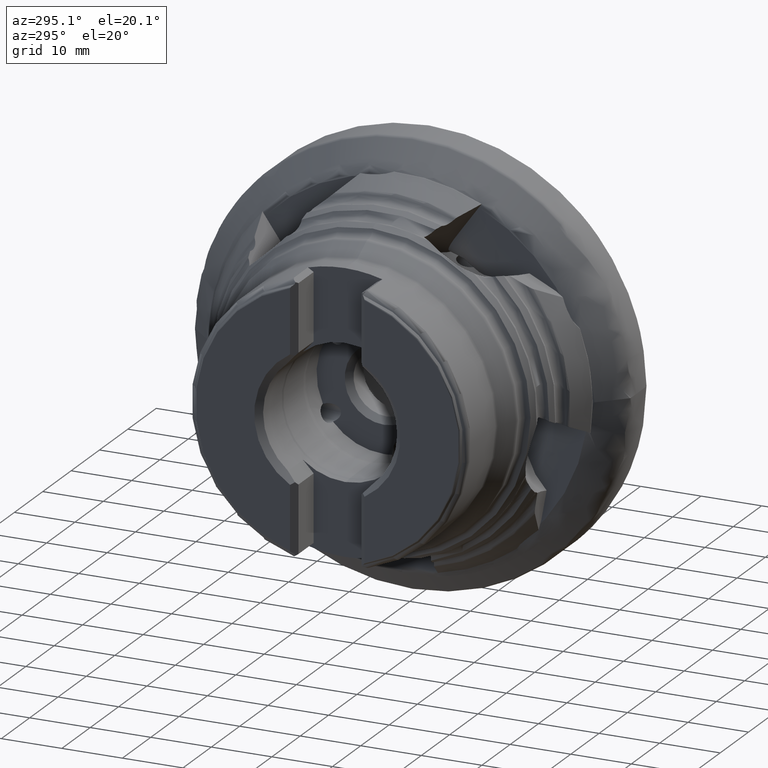
[diagram: clean part render]
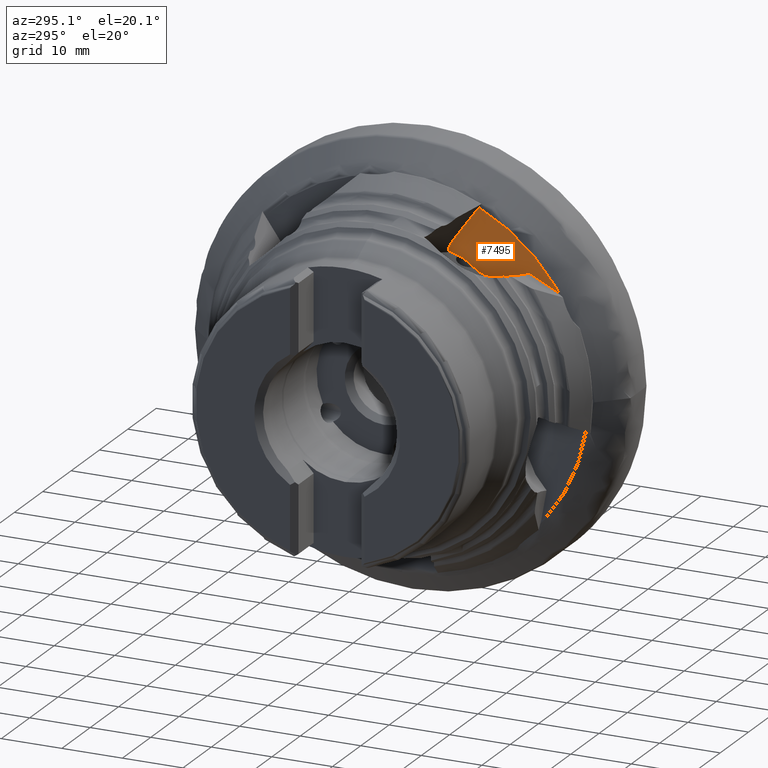
[diagram: same view with one face highlighted and labeled with its STEP entity id]
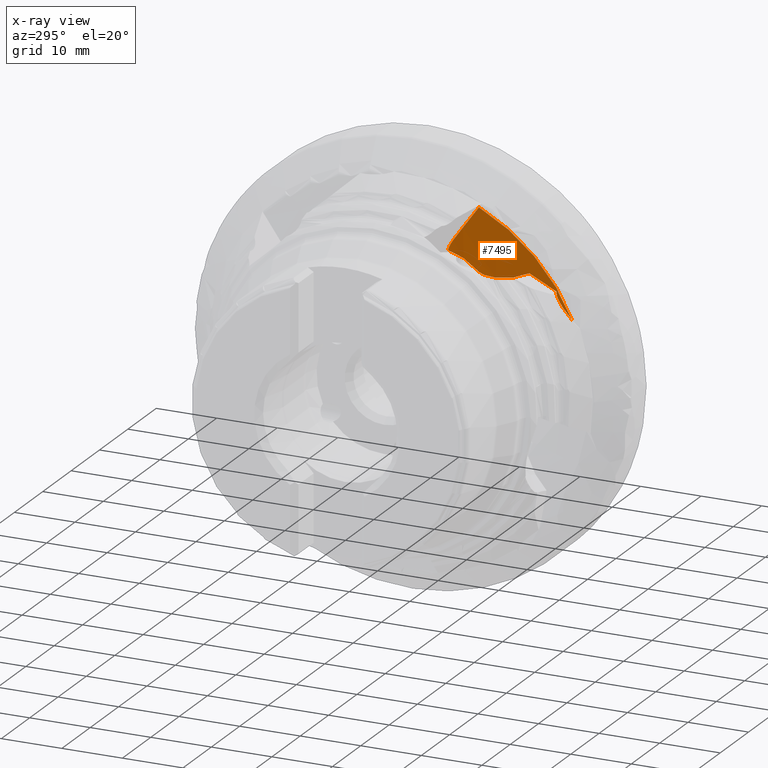
[diagram: x-ray of the same camera — body ghosted, the highlighted face saturated]
A machine part, auxiliary view. The second image highlights one B-rep face of the part: STEP entity #7495.
The next image is the same camera in x-ray: the body ghosted, the highlighted face saturated — about 0% of this face is hidden behind the body in this view.
In plain terms, the highlighted face is a freeform B-spline surface patch.
Its self-contained STEP definition (entity closure, byte-faithful):
#4 = CARTESIAN_POINT ( 'NONE',  ( -9.016913770828889300, -8.184837015918741800, 19.13977999715523400 ) ) ;
#85 = CARTESIAN_POINT ( 'NONE',  ( -8.190329892106474200, -9.241096474645610600, 18.42402318193903800 ) ) ;
#223 = VERTEX_POINT ( 'NONE', #3355 ) ;
#354 = CARTESIAN_POINT ( 'NONE',  ( -13.16994966331733600, -18.51362712729164900, 25.97324049760340600 ) ) ;
#378 = CARTESIAN_POINT ( 'NONE',  ( -9.706206445147820700, -16.94795697899065300, 13.80065692158377500 ) ) ;
#408 = CARTESIAN_POINT ( 'NONE',  ( -8.000243611977360600, -7.020458886139522300, 19.31429120304403900 ) ) ;
#515 = CARTESIAN_POINT ( 'NONE',  ( -13.16962033172529600, -21.23272113885061100, 18.95532153751512900 ) ) ;
#566 = CARTESIAN_POINT ( 'NONE',  ( -10.91985955198240200, -11.59748630990654100, 17.53681446251817300 ) ) ;
#600 = CARTESIAN_POINT ( 'NONE',  ( -13.17013753983549600, -25.82211342620959400, 15.91833572425638900 ) ) ;
#668 = CARTESIAN_POINT ( 'NONE',  ( -10.04735141495903700, -7.769842379139816100, 19.44243409766393400 ) ) ;
#701 = CARTESIAN_POINT ( 'NONE',  ( -8.739394026368730200, -8.400398715019704800, 18.98553004455596500 ) ) ;
#733 = CARTESIAN_POINT ( 'NONE',  ( -8.841056081613604800, -11.27877018520587500, 17.45436696700131300 ) ) ;
#748 = CARTESIAN_POINT ( 'NONE',  ( -10.40991885677047100, -7.663253990794578900, 19.52018918573201800 ) ) ;
#762 = CARTESIAN_POINT ( 'NONE',  ( -9.762669238664608800, -11.53950449863205400, 17.44177580528678500 ) ) ;
#935 = CARTESIAN_POINT ( 'NONE',  ( -8.258265714993944700, -18.90124470569036000, 8.277449975855605000 ) ) ;
#962 = CARTESIAN_POINT ( 'NONE',  ( -13.17035131480634300, -10.30312394172607600, 28.34537447465618200 ) ) ;
#974 = CARTESIAN_POINT ( 'NONE',  ( -13.17730623393591200, -8.828371583318590500, 22.56326512971306300 ) ) ;
#989 = CARTESIAN_POINT ( 'NONE',  ( -13.14295113738111100, -15.54839404143357000, 21.81323924334300600 ) ) ;
#1026 = CARTESIAN_POINT ( 'NONE',  ( -12.68954810947161600, -7.683084089027708800, 20.73320956790620800 ) ) ;
#1158 = CARTESIAN_POINT ( 'NONE',  ( -13.16817428018298000, -20.89746054222437300, 18.76462226042098200 ) ) ;
#1229 = CARTESIAN_POINT ( 'NONE',  ( -12.73327811265234300, -13.87729307025357200, 17.30531459021349900 ) ) ;
#1237 = CARTESIAN_POINT ( 'NONE',  ( -13.17025533913538200, -28.32058393951910300, 12.56478436704439100 ) ) ;
#1283 = CARTESIAN_POINT ( 'NONE',  ( -13.17002770000640100, -27.72918191733422700, 13.16245410086040300 ) ) ;
#1520 = CARTESIAN_POINT ( 'NONE',  ( -10.64770960276189300, -7.606648788078509000, 19.56596331113622600 ) ) ;
#1560 = CARTESIAN_POINT ( 'NONE',  ( -9.706206445147820700, -12.68607029697954800, 17.79761213334725400 ) ) ;
#1579 = CARTESIAN_POINT ( 'NONE',  ( -12.23863953010324900, -7.454943125372705200, 20.18466483545789800 ) ) ;
#1589 = CARTESIAN_POINT ( 'NONE',  ( -13.14295113738110900, -20.77187869354241600, 16.91446183287440200 ) ) ;
#1605 = CARTESIAN_POINT ( 'NONE',  ( -12.56356657843070000, -7.589351950473080400, 20.53867030054594900 ) ) ;
#1621 = CARTESIAN_POINT ( 'NONE',  ( -13.14295113738110900, -23.64459873684150900, 10.35471400380643400 ) ) ;
#1636 = CARTESIAN_POINT ( 'NONE',  ( -13.16997831490842200, -12.32119633608182600, 27.36691442623552500 ) ) ;
#1651 = CARTESIAN_POINT ( 'NONE',  ( -13.17035398992018700, -18.61847049630788600, 26.12032793861725100 ) ) ;
#1693 = CARTESIAN_POINT ( 'NONE',  ( -13.09562115452572500, -8.417353910899949600, 21.95506015081318600 ) ) ;
#1823 = CARTESIAN_POINT ( 'NONE',  ( -10.53506682061789400, -11.55672782699942600, 17.51104760970581600 ) ) ;
#1871 = CARTESIAN_POINT ( 'NONE',  ( -8.124831399498502200, -10.24283947445774200, 17.86294610109799700 ) ) ;
#1910 = VERTEX_POINT ( 'NONE', #748 ) ;
#1923 = CARTESIAN_POINT ( 'NONE',  ( -8.411289951886947900, -8.793852677032072400, 18.71374689416647600 ) ) ;
#2120 = DIRECTION ( 'NONE',  ( 1.000000000000000000, 1.234377343560681600E-016, -0.0000000000000000000 ) ) ;
#2160 = CARTESIAN_POINT ( 'NONE',  ( -13.17035131480634300, -18.16701331213552700, 25.48696712075815200 ) ) ;
#2203 = CARTESIAN_POINT ( 'NONE',  ( -12.95426485198393400, -8.025374957675559500, 21.34202232467684700 ) ) ;
#2221 = CARTESIAN_POINT ( 'NONE',  ( -8.000243611977360600, -12.37884458763775300, 17.36659733646729000 ) ) ;
#2243 = CARTESIAN_POINT ( 'NONE',  ( -9.706206445147820700, -7.194696913439183400, 19.79364505333916200 ) ) ;
#2335 = B_SPLINE_CURVE_WITH_KNOTS ( 'NONE', 3,
 ( #6118, #6091, #4839, #7997 ),
 .UNSPECIFIED., .F., .F.,
 ( 4, 4 ),
 ( 0.001458015810042478400, 0.006450443893829927800 ),
 .UNSPECIFIED. ) ;
#2418 = CARTESIAN_POINT ( 'NONE',  ( -13.20800211544576500, -17.66310889542961200, 17.59216111718332700 ) ) ;
#2442 = CARTESIAN_POINT ( 'NONE',  ( -12.48319258861914200, -13.15318672405437400, 17.36326771912189000 ) ) ;
#2468 = CARTESIAN_POINT ( 'NONE',  ( -13.17239734685362200, -19.85097955807922400, 18.27625667090455200 ) ) ;
#2482 = ORIENTED_EDGE ( 'NONE', *, *, #5526, .F. ) ;
#2499 = CARTESIAN_POINT ( 'NONE',  ( -13.17001077027624200, -25.68037159760341500, 16.54228251858926800 ) ) ;
#2541 = CARTESIAN_POINT ( 'NONE',  ( -13.17005789013350500, -25.71344416887972500, 16.75361590433802000 ) ) ;
#2587 = CARTESIAN_POINT ( 'NONE',  ( -8.615314393190129000, -11.10277826038129100, 17.50582577488010100 ) ) ;
#2610 = CARTESIAN_POINT ( 'NONE',  ( -10.34192757525332800, -11.55394257642821500, 17.49296065435963100 ) ) ;
#2736 = FACE_OUTER_BOUND ( 'NONE', #6362, .T. ) ;
#2773 = CARTESIAN_POINT ( 'NONE',  ( -13.17035398992018700, -10.55916048680877100, 29.04976780143881500 ) ) ;
#2794 = CARTESIAN_POINT ( 'NONE',  ( -13.16994966331733600, -24.73328215382181800, 20.14021760692208600 ) ) ;
#2807 = CARTESIAN_POINT ( 'NONE',  ( -13.19176268961145700, -9.987962311884562200, 24.16682422599618400 ) ) ;
#2828 = CARTESIAN_POINT ( 'NONE',  ( -13.16994966331733800, -10.49970028788213700, 28.88618425003773600 ) ) ;
#2934 = ORIENTED_EDGE ( 'NONE', *, *, #4278, .F. ) ;
#3043 = CARTESIAN_POINT ( 'NONE',  ( -11.91795733181688100, -12.15100732351565100, 17.49137355598784200 ) ) ;
#3064 = B_SPLINE_CURVE_WITH_KNOTS ( 'NONE', 3,
 ( #515, #1158, #7433, #2468, #6156, #4981, #2418, #7408, #4951, #6837, #3647, #8036, #1229, #5545, #2442, #6232, #7458, #6818, #3043, #8109, #5610, #3673, #8060, #4297, #566, #1823, #2610, #6374, #762, #7005, #6922, #4420, #733, #7610, #2587, #3851, #4394, #7502, #1871, #3171, #3749, #5061, #85, #3198, #1923, #3825, #701, #4, #3231, #7529, #668, #5031 ),
 .UNSPECIFIED., .F., .F.,
 ( 4, 2, 2, 2, 2, 2, 2, 2, 2, 2, 2, 2, 2, 2, 2, 2, 2, 2, 2, 2, 2, 2, 2, 2, 2, 4 ),
 ( 8.642840824973464400E-016, 0.001154684402976828800, 0.002309368805952793200, 0.004618737611904721700, 0.005773422014880685500, 0.006928106417856644100, 0.008082790820832604400, 0.008660133022320583300, 0.009237475223808562200, 0.009814817425296542800, 0.01010348852604053100, 0.01039215962678452000, 0.01096950182827249700, 0.01154684402976047200, 0.01212418623124845000, 0.01270152843273642300, 0.01299019953348041400, 0.01327887063422440200, 0.01385621283571237700, 0.01443355503720035500, 0.01501089723868833200, 0.01558823944017630700, 0.01616558164166428300, 0.01674292384315226000, 0.01732026604464023700, 0.01847495044761619100 ),
 .UNSPECIFIED. ) ;
#3129 = CARTESIAN_POINT ( 'NONE',  ( -13.17013880542384500, -26.40657708569198500, 14.79694346753351500 ) ) ;
#3171 = CARTESIAN_POINT ( 'NONE',  ( -8.082131108972628700, -9.902891155959427000, 18.03826927219177600 ) ) ;
#3198 = CARTESIAN_POINT ( 'NONE',  ( -8.325936182785580900, -8.937105583660891000, 18.61835737764322800 ) ) ;
#3231 = CARTESIAN_POINT ( 'NONE',  ( -9.176125297132379900, -8.091705202109890700, 19.20759324880137000 ) ) ;
#3341 = EDGE_CURVE ( 'NONE', #3947, #223, #7335, .T. ) ;
#3355 = CARTESIAN_POINT ( 'NONE',  ( -13.17025533913538200, -28.32058393951910300, 12.56478436704439100 ) ) ;
#3397 = CARTESIAN_POINT ( 'NONE',  ( -13.55398629182466100, -7.047419710640224500, 19.38846430539049200 ) ) ;
#3415 = CARTESIAN_POINT ( 'NONE',  ( -12.49143341916775400, -7.547653194722755600, 20.44375753816211000 ) ) ;
#3428 = CARTESIAN_POINT ( 'NONE',  ( -13.17132620658309100, -9.691116719901737400, 26.66165466482744900 ) ) ;
#3492 = CARTESIAN_POINT ( 'NONE',  ( -12.74343428064659300, -7.734786275672294500, 20.83239988145853500 ) ) ;
#3506 = CARTESIAN_POINT ( 'NONE',  ( -9.706206445147820700, -19.29183431550008300, 8.448501459852082000 ) ) ;
#3520 = CARTESIAN_POINT ( 'NONE',  ( -13.16672919193146600, -10.86697130260633400, 25.36365538270451500 ) ) ;
#3647 = CARTESIAN_POINT ( 'NONE',  ( -12.98060654382923900, -15.00908776084625300, 17.29107712028079600 ) ) ;
#3673 = CARTESIAN_POINT ( 'NONE',  ( -11.46744131289129200, -11.79164957116236000, 17.53653148994927900 ) ) ;
#3749 = CARTESIAN_POINT ( 'NONE',  ( -8.086760567692916600, -9.731155466268244700, 18.13316444164333400 ) ) ;
#3781 = CARTESIAN_POINT ( 'NONE',  ( -13.17009508656971800, -27.16946108677687000, 13.79189414419115100 ) ) ;
#3825 = CARTESIAN_POINT ( 'NONE',  ( -8.618881247396256400, -8.524075169697098900, 18.89828509610760300 ) ) ;
#3851 = CARTESIAN_POINT ( 'NONE',  ( -8.423385496677795500, -10.89769416423912000, 17.57635423425124100 ) ) ;
#3947 = VERTEX_POINT ( 'NONE', #4793 ) ;
#3975 = CARTESIAN_POINT ( 'NONE',  ( -13.17025533913538200, -3.022710658568705000E-015, 0.0000000000000000000 ) ) ;
#4034 = CARTESIAN_POINT ( 'NONE',  ( -13.19494770791353500, -9.114206666089712500, 22.96585940796108400 ) ) ;
#4061 = CARTESIAN_POINT ( 'NONE',  ( -13.17004460608269900, -11.73916711634628400, 26.56585441170375400 ) ) ;
#4077 = CARTESIAN_POINT ( 'NONE',  ( -13.17025533913538000, -18.66269844513738000, 26.18237645800060800 ) ) ;
#4106 = CARTESIAN_POINT ( 'NONE',  ( -13.14295113738111100, -8.818016927233385300, 24.25963167481932800 ) ) ;
#4120 = CARTESIAN_POINT ( 'NONE',  ( -13.20280894406298900, -9.694309693012368000, 23.76839167040570200 ) ) ;
#4136 = CARTESIAN_POINT ( 'NONE',  ( -8.258265714993948200, -16.60482237627548600, 13.52124371939862600 ) ) ;
#4155 = CARTESIAN_POINT ( 'NONE',  ( -13.16984333587268600, -11.44821063123310800, 26.16528247724247400 ) ) ;
#4278 = EDGE_CURVE ( 'NONE', #1910, #3947, #4985, .T. ) ;
#4297 = CARTESIAN_POINT ( 'NONE',  ( -11.11152708088980200, -11.63689030472690100, 17.54399619117518900 ) ) ;
#4307 = CARTESIAN_POINT ( 'NONE',  ( -13.17011157527096500, -25.71247113763153200, 16.32682762021730500 ) ) ;
#4394 = CARTESIAN_POINT ( 'NONE',  ( -8.321393230385751800, -10.74068526479150700, 17.63800950492182600 ) ) ;
#4420 = CARTESIAN_POINT ( 'NONE',  ( -8.923888126731672100, -11.32633691393907100, 17.44323433346590900 ) ) ;
#4546 = CARTESIAN_POINT ( 'NONE',  ( -11.23924474227287900, -7.484278085073495600, 19.70521563610617500 ) ) ;
#4643 = CARTESIAN_POINT ( 'NONE',  ( -13.55398629182466100, -12.42638333999875200, 17.43329066671201100 ) ) ;
#4659 = CARTESIAN_POINT ( 'NONE',  ( -11.59060490397021000, -7.434027183389564400, 19.81880771411047700 ) ) ;
#4677 = CARTESIAN_POINT ( 'NONE',  ( -13.17025533913538200, -10.58424364333259100, 29.11877516936871400 ) ) ;
#4710 = CARTESIAN_POINT ( 'NONE',  ( -13.16961049560004900, -10.05955732596447500, 27.67528771530669800 ) ) ;
#4739 = CARTESIAN_POINT ( 'NONE',  ( -13.17132620658308900, -22.82856821118820900, 18.58921628631281200 ) ) ;
#4752 = CARTESIAN_POINT ( 'NONE',  ( -12.32977651321746700, -7.480764237145668200, 20.26760854662012800 ) ) ;
#4764 = CARTESIAN_POINT ( 'NONE',  ( -8.000243611977357000, -16.53751875952057300, 13.46643864020425800 ) ) ;
#4777 = CARTESIAN_POINT ( 'NONE',  ( -13.17025533913537800, -12.90314047274958800, 28.16803590607910100 ) ) ;
#4793 = CARTESIAN_POINT ( 'NONE',  ( -13.17025533913537800, -12.90314047274958800, 28.16803590607910100 ) ) ;
#4839 = CARTESIAN_POINT ( 'NONE',  ( -13.17201905047487600, -22.72634671444323500, 18.22152552505274400 ) ) ;
#4904 = CARTESIAN_POINT ( 'NONE',  ( -13.17005789013350500, -25.71344416887972500, 16.75361590433802000 ) ) ;
#4935 = CARTESIAN_POINT ( 'NONE',  ( -13.17013629173894400, -25.90276631409026800, 15.71988675931838100 ) ) ;
#4951 = CARTESIAN_POINT ( 'NONE',  ( -13.12412434691660900, -16.15552152498420600, 17.36666414481704700 ) ) ;
#4954 = VERTEX_POINT ( 'NONE', #4904 ) ;
#4958 = CARTESIAN_POINT ( 'NONE',  ( -13.17013654238120100, -26.17850508021906100, 15.14869873663145200 ) ) ;
#4981 = CARTESIAN_POINT ( 'NONE',  ( -13.20309603501124600, -18.40301222550814600, 17.77085697728478700 ) ) ;
#4985 = B_SPLINE_CURVE_WITH_KNOTS ( 'NONE', 3,
 ( #6445, #1520, #7694, #4546, #5310, #4659, #5396, #7262, #5947, #1579, #4752, #3415, #1605, #1026, #3492, #7798, #2203, #7885, #1693, #974, #4034, #4120, #2807, #5418, #7910, #3520, #6051, #4155, #4061, #1636, #6023, #4777 ),
 .UNSPECIFIED., .F., .F.,
 ( 4, 2, 2, 2, 2, 2, 2, 2, 2, 2, 2, 2, 2, 2, 2, 4 ),
 ( 1.734723475976807100E-018, 0.0007434997075871903400, 0.001115249561380787400, 0.001486999415174384200, 0.001858749268967981200, 0.002230499122761578200, 0.002602248976555175000, 0.002973998830348771800, 0.003717498537935956700, 0.004460998245523141600, 0.005947997660697520100, 0.007434997075871898700, 0.008178496783459086200, 0.008921996491046276300, 0.01040899590622065300, 0.01189599532139503000 ),
 .UNSPECIFIED. ) ;
#5031 = CARTESIAN_POINT ( 'NONE',  ( -10.40991885677047100, -7.663253990794578900, 19.52018918573201800 ) ) ;
#5061 = CARTESIAN_POINT ( 'NONE',  ( -8.140755217121865800, -9.402026244892113000, 18.32505566778839100 ) ) ;
#5081 = AXIS2_PLACEMENT_3D ( 'NONE', #3975, #2120, #6415 ) ;
#5151 = CARTESIAN_POINT ( 'NONE',  ( -13.17035398992018500, -28.31329478824639200, 12.39928295255636200 ) ) ;
#5295 = CARTESIAN_POINT ( 'NONE',  ( -8.258265714993950000, -12.42922342766267700, 17.43727509825653100 ) ) ;
#5310 = CARTESIAN_POINT ( 'NONE',  ( -11.35683485989799000, -7.464469000563543200, 19.73911410617676100 ) ) ;
#5323 = CARTESIAN_POINT ( 'NONE',  ( -13.16961049560005000, -17.73754376717423400, 24.88445332370581700 ) ) ;
#5351 = CARTESIAN_POINT ( 'NONE',  ( -13.55398629182465900, -18.89692575589966600, 8.275558571802728000 ) ) ;
#5380 = CARTESIAN_POINT ( 'NONE',  ( -13.16961049560005000, -23.69647350532236600, 19.29594826702409100 ) ) ;
#5396 = CARTESIAN_POINT ( 'NONE',  ( -11.70781646318822500, -7.423380121245518400, 19.86511972271172500 ) ) ;
#5418 = CARTESIAN_POINT ( 'NONE',  ( -13.17616652933722000, -10.42820723453817800, 24.76465718970999300 ) ) ;
#5429 = B_SPLINE_CURVE_WITH_KNOTS ( 'NONE', 3,
 ( #2541, #2499, #4307, #600, #4935, #4958, #3129, #8119, #3781, #1283, #6932, #1237 ),
 .UNSPECIFIED., .F., .F.,
 ( 4, 2, 2, 2, 2, 4 ),
 ( 0.0003248587468122744300, 0.0009615578587326835200, 0.001598256970653092800, 0.002871655194493910900, 0.004145053418334728900, 0.005418451642175547500 ),
 .UNSPECIFIED. ) ;
#5526 = EDGE_CURVE ( 'NONE', #4954, #7749, #2335, .T. ) ;
#5545 = CARTESIAN_POINT ( 'NONE',  ( -12.55077486743594900, -13.33215050125392600, 17.34641986954048700 ) ) ;
#5592 = ORIENTED_EDGE ( 'NONE', *, *, #6002, .F. ) ;
#5610 = CARTESIAN_POINT ( 'NONE',  ( -11.62966081992530200, -11.89588955997853300, 17.52534122599293600 ) ) ;
#5841 = CARTESIAN_POINT ( 'NONE',  ( -13.16962033172529600, -21.23272113885061100, 18.95532153751512900 ) ) ;
#5899 = CARTESIAN_POINT ( 'NONE',  ( -13.17035398992018700, -24.87334766394614900, 20.25427241920233700 ) ) ;
#5938 = CARTESIAN_POINT ( 'NONE',  ( -13.17035131480634300, -24.27022339014867600, 19.76315061649322800 ) ) ;
#5947 = CARTESIAN_POINT ( 'NONE',  ( -12.03827915002118800, -7.423212395076118900, 20.03677576329311800 ) ) ;
#5961 = CARTESIAN_POINT ( 'NONE',  ( -8.258265714993946500, -7.049030419825272500, 19.39289559780997900 ) ) ;
#6002 = EDGE_CURVE ( 'NONE', #7749, #1910, #3064, .T. ) ;
#6023 = CARTESIAN_POINT ( 'NONE',  ( -13.17090737487051100, -12.61197247107207000, 27.76761668268462600 ) ) ;
#6051 = CARTESIAN_POINT ( 'NONE',  ( -13.16700306312005800, -11.01240530647142000, 25.56397056763432800 ) ) ;
#6091 = CARTESIAN_POINT ( 'NONE',  ( -13.16977770801575600, -24.21986600484678600, 17.48751184610018000 ) ) ;
#6118 = CARTESIAN_POINT ( 'NONE',  ( -13.17005789013350500, -25.71344416887972500, 16.75361590433802000 ) ) ;
#6156 = CARTESIAN_POINT ( 'NONE',  ( -13.18184347679784600, -19.49079070715240300, 18.13706797189840700 ) ) ;
#6232 = CARTESIAN_POINT ( 'NONE',  ( -12.32871177054809700, -12.80279673188259300, 17.40191615281887400 ) ) ;
#6362 = EDGE_LOOP ( 'NONE', ( #6911, #2934, #5592, #2482, #6946 ) ) ;
#6374 = CARTESIAN_POINT ( 'NONE',  ( -9.955735638522794400, -11.54515160397211900, 17.45838718048705500 ) ) ;
#6415 = DIRECTION ( 'NONE',  ( -5.599002175131491200E-017, 1.000000000000000000, 0.0000000000000000000 ) ) ;
#6445 = CARTESIAN_POINT ( 'NONE',  ( -10.40991885677047100, -7.663253990794578900, 19.52018918573201800 ) ) ;
#6537 = CARTESIAN_POINT ( 'NONE',  ( -13.17035131480634100, -27.62675932109947400, 12.09862746269603500 ) ) ;
#6575 = CARTESIAN_POINT ( 'NONE',  ( -13.17025533913538000, -28.38055267354568300, 12.42873729747995900 ) ) ;
#6601 = CARTESIAN_POINT ( 'NONE',  ( -8.000243611977358800, -18.82463309846954400, 8.243899341692909400 ) ) ;
#6660 = CARTESIAN_POINT ( 'NONE',  ( -13.17025533913538000, -24.93243399694635100, 20.30238619548233500 ) ) ;
#6818 = CARTESIAN_POINT ( 'NONE',  ( -12.03719522480995100, -12.30454453760577000, 17.46873318717581800 ) ) ;
#6837 = CARTESIAN_POINT ( 'NONE',  ( -13.03785540126784400, -15.39092723761228000, 17.30606129019240300 ) ) ;
#6911 = ORIENTED_EDGE ( 'NONE', *, *, #3341, .F. ) ;
#6922 = CARTESIAN_POINT ( 'NONE',  ( -9.188545404867403100, -11.44557269805160400, 17.42154646395245300 ) ) ;
#6932 = CARTESIAN_POINT ( 'NONE',  ( -13.17046307057498200, -28.02071529411595900, 12.85942920290144200 ) ) ;
#6946 = ORIENTED_EDGE ( 'NONE', *, *, #7124, .T. ) ;
#6993 =( BOUNDED_SURFACE ( )  B_SPLINE_SURFACE ( 3, 3, ( 
 ( #4677, #4077, #6660, #6575 ),
 ( #2773, #1651, #5899, #5151 ),
 ( #2828, #354, #2794, #7188 ),
 ( #962, #2160, #5938, #6537 ),
 ( #4710, #5323, #5380, #7868 ),
 ( #3428, #7276, #4739, #7158 ),
 ( #4106, #989, #1589, #1621 ),
 ( #3397, #4643, #7900, #5351 ),
 ( #2243, #1560, #378, #3506 ),
 ( #5961, #5295, #4136, #935 ),
 ( #408, #2221, #4764, #6601 ) ),
 .UNSPECIFIED., .F., .F., .T. ) 
 B_SPLINE_SURFACE_WITH_KNOTS ( ( 4, 1, 1, 1, 1, 1, 1, 1, 4 ),
 ( 4, 4 ),
 ( 0.4999999999999998900, 0.5044728484161924400, 0.5106047321032852700, 0.5350447420567333600, 0.5480262635532284800, 0.5759063534171595700, 0.6975902068388485400, 0.7643923084864835400, 0.7791838545007927500 ),
 ( 0.0000000000000000000, 1.000000000000000000 ),
 .UNSPECIFIED. ) 
 GEOMETRIC_REPRESENTATION_ITEM ( )  RATIONAL_B_SPLINE_SURFACE ( (
 ( 1.000000000000000000, 0.9461488385039581500, 0.9461488385039581500, 1.000000000000000000),
 ( 1.000000000000000000, 0.9461488385039581500, 0.9461488385039581500, 1.000000000000000000),
 ( 1.000000000000000000, 0.9461488385039581500, 0.9461488385039581500, 1.000000000000000000),
 ( 1.000000000000000000, 0.9461488385039581500, 0.9461488385039581500, 1.000000000000000000),
 ( 1.000000000000000000, 0.9461488385039581500, 0.9461488385039581500, 1.000000000000000000),
 ( 1.000000000000000000, 0.9461488385039581500, 0.9461488385039581500, 1.000000000000000000),
 ( 1.000000000000000000, 0.9461488385039581500, 0.9461488385039581500, 1.000000000000000000),
 ( 1.000000000000000000, 0.9461488385039581500, 0.9461488385039581500, 1.000000000000000000),
 ( 1.000000000000000000, 0.9461488385039581500, 0.9461488385039581500, 1.000000000000000000),
 ( 1.000000000000000000, 0.9461488385039581500, 0.9461488385039581500, 1.000000000000000000),
 ( 1.000000000000000000, 0.9461488385039581500, 0.9461488385039581500, 1.000000000000000000) ) ) 
 REPRESENTATION_ITEM ( '' )  SURFACE ( )  );
#7005 = CARTESIAN_POINT ( 'NONE',  ( -9.377902710021627900, -11.48981858426989400, 17.42324751460277800 ) ) ;
#7124 = EDGE_CURVE ( 'NONE', #4954, #223, #5429, .T. ) ;
#7158 = CARTESIAN_POINT ( 'NONE',  ( -13.17132620658308900, -25.98572536715062900, 11.37996704249616000 ) ) ;
#7188 = CARTESIAN_POINT ( 'NONE',  ( -13.16994966331733600, -28.15385842562260500, 12.32946075108232400 ) ) ;
#7262 = CARTESIAN_POINT ( 'NONE',  ( -11.93147989769955300, -7.417912850290406400, 19.97393099159869900 ) ) ;
#7276 = CARTESIAN_POINT ( 'NONE',  ( -13.17132620658308900, -17.08788979494882600, 23.97303716819948600 ) ) ;
#7335 = CIRCLE ( 'NONE', #5081, 30.98272552351826200 ) ;
#7408 = CARTESIAN_POINT ( 'NONE',  ( -13.15272798476359700, -16.53477021256473400, 17.41190514230750400 ) ) ;
#7433 = CARTESIAN_POINT ( 'NONE',  ( -13.16557931174872000, -20.55432940303486300, 18.59009669424490200 ) ) ;
#7458 = CARTESIAN_POINT ( 'NONE',  ( -12.24139051928948700, -12.62992144693740200, 17.42400410186581500 ) ) ;
#7495 = ADVANCED_FACE ( 'NONE', ( #2736 ), #6993, .T. ) ;
#7502 = CARTESIAN_POINT ( 'NONE',  ( -8.172612888722374800, -10.41474723470105000, 17.78066349983956900 ) ) ;
#7529 = CARTESIAN_POINT ( 'NONE',  ( -9.676137870766224200, -7.861625840145623400, 19.37541789843593800 ) ) ;
#7610 = CARTESIAN_POINT ( 'NONE',  ( -8.686925086952063800, -11.16705245515751200, 17.48563106932386200 ) ) ;
#7694 = CARTESIAN_POINT ( 'NONE',  ( -10.88526751889098200, -7.551558648546992100, 19.61370163796754100 ) ) ;
#7749 = VERTEX_POINT ( 'NONE', #5841 ) ;
#7798 = CARTESIAN_POINT ( 'NONE',  ( -12.88539497843153300, -7.900355789273461900, 21.13412621847733400 ) ) ;
#7868 = CARTESIAN_POINT ( 'NONE',  ( -13.16961049560004700, -26.97366067739110900, 11.81261501024798800 ) ) ;
#7885 = CARTESIAN_POINT ( 'NONE',  ( -13.05907332839542400, -8.283321491947102500, 21.75157036257478900 ) ) ;
#7900 = CARTESIAN_POINT ( 'NONE',  ( -13.55398629182465900, -16.60102816085512200, 13.51815410420972400 ) ) ;
#7910 = CARTESIAN_POINT ( 'NONE',  ( -13.17117059866136200, -10.57490678250620200, 24.96397321137996900 ) ) ;
#7997 = CARTESIAN_POINT ( 'NONE',  ( -13.16962033172529600, -21.23272113885061100, 18.95532153751512900 ) ) ;
#8036 = CARTESIAN_POINT ( 'NONE',  ( -12.82837447603731600, -14.25321222475429100, 17.29058554883611300 ) ) ;
#8060 = CARTESIAN_POINT ( 'NONE',  ( -11.38003300708360900, -11.74634653505254900, 17.54018852970290600 ) ) ;
#8109 = CARTESIAN_POINT ( 'NONE',  ( -11.70534456626810600, -11.95499194283988600, 17.51784655067430700 ) ) ;
#8119 = CARTESIAN_POINT ( 'NONE',  ( -13.17013074972008700, -26.90066380918006700, 14.11833300844241500 ) ) ;